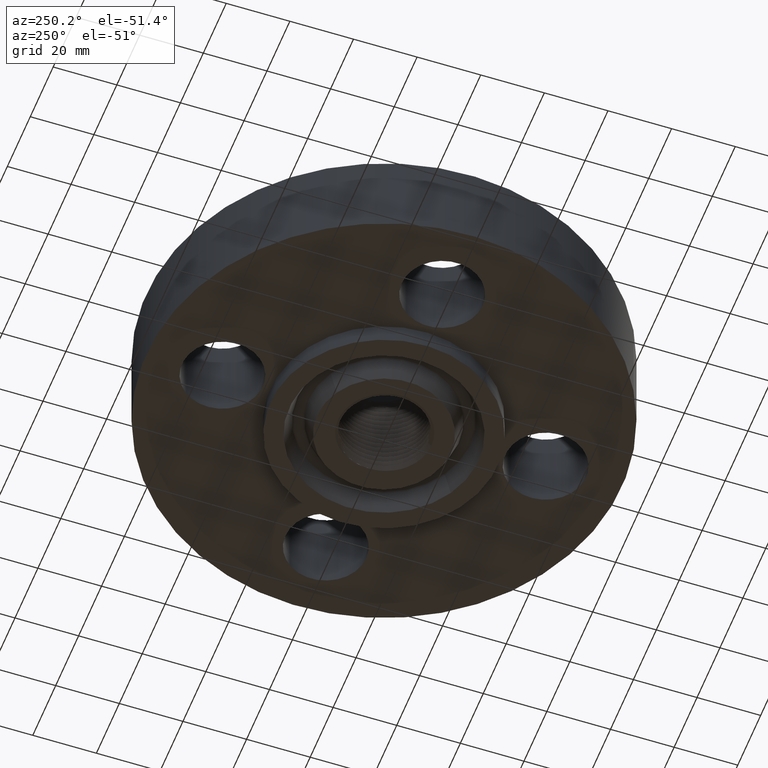
[diagram: clean part render]
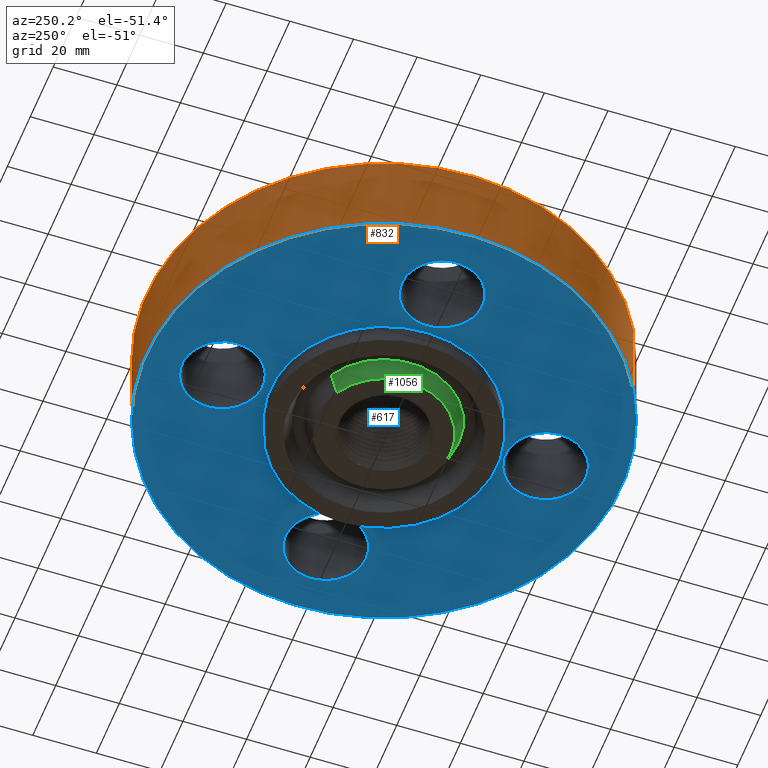
[diagram: same view with three faces highlighted in distinct colors, each labeled with its STEP entity id]
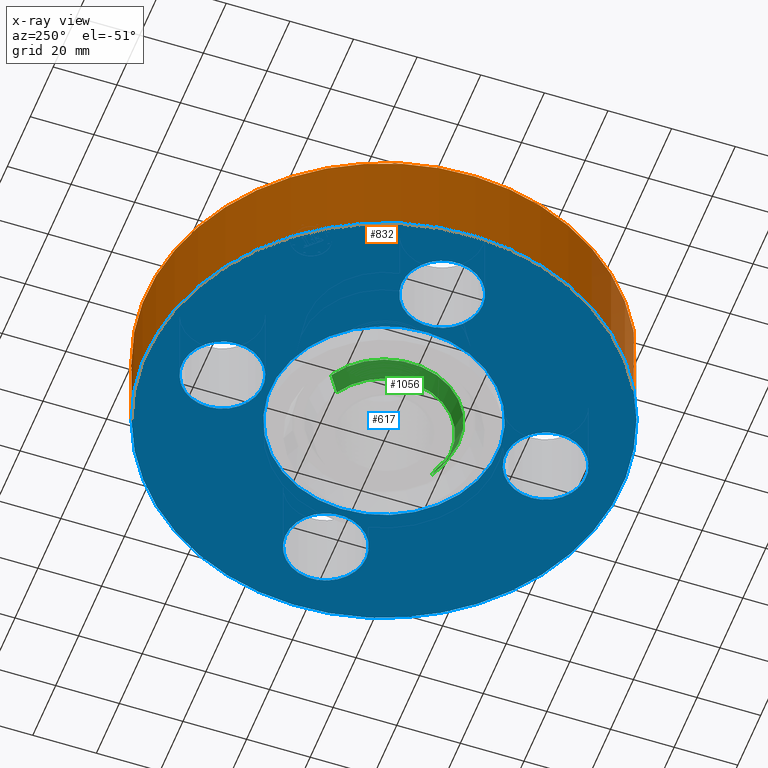
[diagram: x-ray of the same camera — body ghosted, the three highlighted faces saturated]
A machine part, auxiliary view with three faces highlighted in distinct colors.
The next image is the same camera in x-ray (body ghosted, the three faces saturated) — at least one of them is partly hidden behind the body in this view.
Their STEP definitions:

[orange] entity #832 — the highlighted cylindrical surface (partial cylindrical patch) has radius 74.676 mm, axis along (0, 0, -1).
#553=AXIS2_PLACEMENT_3D('Circle Axis2P3D',#551,#552,$) ;
#793=AXIS2_PLACEMENT_3D('Cylinder Axis2P3D',#790,#791,#792) ;
#823=AXIS2_PLACEMENT_3D('Circle Axis2P3D',#821,#822,$) ;
#551=CARTESIAN_POINT('Axis2P3D Location',(0.,0.,0.)) ;
#555=CARTESIAN_POINT('Vertex',(-1.4095110835,-2.58009273197,2.79741234551E-016)) ;
#557=CARTESIAN_POINT('Vertex',(1.4095110835,2.58009273197,2.79741234551E-016)) ;
#790=CARTESIAN_POINT('Axis2P3D Location',(0.,0.,0.685000000003)) ;
#795=CARTESIAN_POINT('Line Origine',(1.4095110835,2.58009273197,0.560000000002)) ;
#799=CARTESIAN_POINT('Vertex',(1.4095110835,2.58009273197,1.12)) ;
#806=CARTESIAN_POINT('Vertex',(-1.4095110835,-2.58009273197,1.12)) ;
#809=CARTESIAN_POINT('Line Origine',(-1.4095110835,-2.58009273197,0.560000000002)) ;
#821=CARTESIAN_POINT('Axis2P3D Location',(0.,0.,1.12)) ;
#552=DIRECTION('Axis2P3D Direction',(0.,0.,-0.0393700787402)) ;
#791=DIRECTION('Axis2P3D Direction',(0.,0.,-0.0393700787402)) ;
#792=DIRECTION('Axis2P3D XDirection',(-0.0188750212049,-0.0345504945626,0.)) ;
#796=DIRECTION('Vector Direction',(0.,0.,-0.0393700787402)) ;
#810=DIRECTION('Vector Direction',(0.,0.,-0.0393700787402)) ;
#822=DIRECTION('Axis2P3D Direction',(0.,0.,-0.0393700787402)) ;
#797=VECTOR('Line Direction',#796,0.0393700787402) ;
#811=VECTOR('Line Direction',#810,0.0393700787402) ;
#827=ORIENTED_EDGE('',*,*,#559,.F.) ;
#828=ORIENTED_EDGE('',*,*,#813,.T.) ;
#829=ORIENTED_EDGE('',*,*,#825,.T.) ;
#830=ORIENTED_EDGE('',*,*,#801,.F.) ;
#832=ADVANCED_FACE('PartBody',(#831),#794,.T.) ;
#554=CIRCLE('generated circle',#553,2.94000000001) ;
#824=CIRCLE('generated circle',#823,2.94000000001) ;
#794=CYLINDRICAL_SURFACE('generated cylinder',#793,2.94000000001) ;
#559=EDGE_CURVE('',#556,#558,#554,.T.) ;
#801=EDGE_CURVE('',#558,#800,#798,.F.) ;
#813=EDGE_CURVE('',#556,#807,#812,.F.) ;
#825=EDGE_CURVE('',#807,#800,#824,.T.) ;
#826=EDGE_LOOP('',(#827,#828,#829,#830)) ;
#831=FACE_OUTER_BOUND('',#826,.T.) ;
#798=LINE('Line',#795,#797) ;
#812=LINE('Line',#809,#811) ;
#556=VERTEX_POINT('',#555) ;
#558=VERTEX_POINT('',#557) ;
#800=VERTEX_POINT('',#799) ;
#807=VERTEX_POINT('',#806) ;

[blue] entity #617 — the highlighted planar face has unit normal (0, 0, -1).
#391=AXIS2_PLACEMENT_3D('Circle Axis2P3D',#389,#390,$) ;
#417=AXIS2_PLACEMENT_3D('Circle Axis2P3D',#415,#416,$) ;
#448=AXIS2_PLACEMENT_3D('Circle Axis2P3D',#446,#447,$) ;
#474=AXIS2_PLACEMENT_3D('Circle Axis2P3D',#472,#473,$) ;
#505=AXIS2_PLACEMENT_3D('Circle Axis2P3D',#503,#504,$) ;
#531=AXIS2_PLACEMENT_3D('Circle Axis2P3D',#529,#530,$) ;
#549=AXIS2_PLACEMENT_3D('Plane Axis2P3D',#546,#547,#548) ;
#553=AXIS2_PLACEMENT_3D('Circle Axis2P3D',#551,#552,$) ;
#562=AXIS2_PLACEMENT_3D('Circle Axis2P3D',#560,#561,$) ;
#571=AXIS2_PLACEMENT_3D('Circle Axis2P3D',#569,#570,$) ;
#580=AXIS2_PLACEMENT_3D('Circle Axis2P3D',#578,#579,$) ;
#589=AXIS2_PLACEMENT_3D('Circle Axis2P3D',#587,#588,$) ;
#598=AXIS2_PLACEMENT_3D('Circle Axis2P3D',#596,#597,$) ;
#384=CARTESIAN_POINT('Vertex',(1.7602872307,-0.438791280947,0.)) ;
#389=CARTESIAN_POINT('Axis2P3D Location',(2.00000000001,1.22464679915E-016,0.)) ;
#393=CARTESIAN_POINT('Vertex',(2.23971276931,0.438791280947,0.)) ;
#415=CARTESIAN_POINT('Axis2P3D Location',(2.00000000001,1.22464679915E-016,0.)) ;
#441=CARTESIAN_POINT('Vertex',(-0.438791280947,-1.7602872307,0.)) ;
#446=CARTESIAN_POINT('Axis2P3D Location',(2.4492935983E-016,-2.00000000001,0.)) ;
#450=CARTESIAN_POINT('Vertex',(0.438791280947,-2.23971276931,0.)) ;
#472=CARTESIAN_POINT('Axis2P3D Location',(2.4492935983E-016,-2.00000000001,0.)) ;
#498=CARTESIAN_POINT('Vertex',(-1.7602872307,0.438791280947,0.)) ;
#503=CARTESIAN_POINT('Axis2P3D Location',(-2.00000000001,-3.67394039746E-016,0.)) ;
#507=CARTESIAN_POINT('Vertex',(-2.23971276931,-0.438791280947,0.)) ;
#529=CARTESIAN_POINT('Axis2P3D Location',(-2.00000000001,-3.67394039746E-016,0.)) ;
#546=CARTESIAN_POINT('Axis2P3D Location',(0.,1.40650000001,0.)) ;
#551=CARTESIAN_POINT('Axis2P3D Location',(0.,0.,0.)) ;
#555=CARTESIAN_POINT('Vertex',(-1.4095110835,-2.58009273197,2.79741234551E-016)) ;
#557=CARTESIAN_POINT('Vertex',(1.4095110835,2.58009273197,2.79741234551E-016)) ;
#560=CARTESIAN_POINT('Axis2P3D Location',(0.,0.,0.)) ;
#569=CARTESIAN_POINT('Axis2P3D Location',(0.,2.00000000001,0.)) ;
#573=CARTESIAN_POINT('Vertex',(0.438791280947,1.7602872307,0.)) ;
#575=CARTESIAN_POINT('Vertex',(-0.438791280947,2.23971276931,0.)) ;
#578=CARTESIAN_POINT('Axis2P3D Location',(5.24514814784E-017,2.00000000001,0.)) ;
#587=CARTESIAN_POINT('Axis2P3D Location',(0.,0.,0.)) ;
#591=CARTESIAN_POINT('Vertex',(0.67431202005,1.2343198733,0.)) ;
#593=CARTESIAN_POINT('Vertex',(-0.67431202005,-1.2343198733,0.)) ;
#596=CARTESIAN_POINT('Axis2P3D Location',(0.,0.,0.)) ;
#390=DIRECTION('Axis2P3D Direction',(0.,-0.,-0.0393700787402)) ;
#416=DIRECTION('Axis2P3D Direction',(0.,-0.,-0.0393700787402)) ;
#447=DIRECTION('Axis2P3D Direction',(-0.,0.,-0.0393700787402)) ;
#473=DIRECTION('Axis2P3D Direction',(-0.,0.,-0.0393700787402)) ;
#504=DIRECTION('Axis2P3D Direction',(0.,0.,-0.0393700787402)) ;
#530=DIRECTION('Axis2P3D Direction',(0.,0.,-0.0393700787402)) ;
#547=DIRECTION('Axis2P3D Direction',(0.,0.,-0.0393700787402)) ;
#548=DIRECTION('Axis2P3D XDirection',(0.0393700787402,0.,0.)) ;
#552=DIRECTION('Axis2P3D Direction',(0.,0.,-0.0393700787402)) ;
#561=DIRECTION('Axis2P3D Direction',(0.,0.,-0.0393700787402)) ;
#570=DIRECTION('Axis2P3D Direction',(0.,0.,-0.0393700787402)) ;
#579=DIRECTION('Axis2P3D Direction',(0.,0.,-0.0393700787402)) ;
#588=DIRECTION('Axis2P3D Direction',(0.,0.,-0.0393700787402)) ;
#597=DIRECTION('Axis2P3D Direction',(0.,0.,-0.0393700787402)) ;
#566=ORIENTED_EDGE('',*,*,#559,.T.) ;
#567=ORIENTED_EDGE('',*,*,#564,.T.) ;
#584=ORIENTED_EDGE('',*,*,#577,.F.) ;
#585=ORIENTED_EDGE('',*,*,#582,.F.) ;
#602=ORIENTED_EDGE('',*,*,#595,.F.) ;
#603=ORIENTED_EDGE('',*,*,#600,.F.) ;
#606=ORIENTED_EDGE('',*,*,#419,.F.) ;
#607=ORIENTED_EDGE('',*,*,#395,.F.) ;
#610=ORIENTED_EDGE('',*,*,#476,.F.) ;
#611=ORIENTED_EDGE('',*,*,#452,.F.) ;
#614=ORIENTED_EDGE('',*,*,#533,.F.) ;
#615=ORIENTED_EDGE('',*,*,#509,.F.) ;
#586=FACE_BOUND('',#583,.T.) ;
#604=FACE_BOUND('',#601,.T.) ;
#608=FACE_BOUND('',#605,.T.) ;
#612=FACE_BOUND('',#609,.T.) ;
#616=FACE_BOUND('',#613,.T.) ;
#617=ADVANCED_FACE('PartBody',(#568,#586,#604,#608,#612,#616),#550,.T.) ;
#392=CIRCLE('generated circle',#391,0.500000000002) ;
#418=CIRCLE('generated circle',#417,0.500000000002) ;
#449=CIRCLE('generated circle',#448,0.500000000002) ;
#475=CIRCLE('generated circle',#474,0.500000000002) ;
#506=CIRCLE('generated circle',#505,0.500000000002) ;
#532=CIRCLE('generated circle',#531,0.500000000002) ;
#554=CIRCLE('generated circle',#553,2.94000000001) ;
#563=CIRCLE('generated circle',#562,2.94000000001) ;
#572=CIRCLE('generated circle',#571,0.500000000002) ;
#581=CIRCLE('generated circle',#580,0.500000000002) ;
#590=CIRCLE('generated circle',#589,1.40650000001) ;
#599=CIRCLE('generated circle',#598,1.40650000001) ;
#395=EDGE_CURVE('',#385,#394,#392,.T.) ;
#419=EDGE_CURVE('',#394,#385,#418,.T.) ;
#452=EDGE_CURVE('',#442,#451,#449,.T.) ;
#476=EDGE_CURVE('',#451,#442,#475,.T.) ;
#509=EDGE_CURVE('',#499,#508,#506,.T.) ;
#533=EDGE_CURVE('',#508,#499,#532,.T.) ;
#559=EDGE_CURVE('',#556,#558,#554,.T.) ;
#564=EDGE_CURVE('',#558,#556,#563,.T.) ;
#577=EDGE_CURVE('',#574,#576,#572,.T.) ;
#582=EDGE_CURVE('',#576,#574,#581,.T.) ;
#595=EDGE_CURVE('',#592,#594,#590,.T.) ;
#600=EDGE_CURVE('',#594,#592,#599,.T.) ;
#565=EDGE_LOOP('',(#566,#567)) ;
#583=EDGE_LOOP('',(#584,#585)) ;
#601=EDGE_LOOP('',(#602,#603)) ;
#605=EDGE_LOOP('',(#606,#607)) ;
#609=EDGE_LOOP('',(#610,#611)) ;
#613=EDGE_LOOP('',(#614,#615)) ;
#568=FACE_OUTER_BOUND('',#565,.T.) ;
#550=PLANE('',#549) ;
#385=VERTEX_POINT('',#384) ;
#394=VERTEX_POINT('',#393) ;
#442=VERTEX_POINT('',#441) ;
#451=VERTEX_POINT('',#450) ;
#499=VERTEX_POINT('',#498) ;
#508=VERTEX_POINT('',#507) ;
#556=VERTEX_POINT('',#555) ;
#558=VERTEX_POINT('',#557) ;
#574=VERTEX_POINT('',#573) ;
#576=VERTEX_POINT('',#575) ;
#592=VERTEX_POINT('',#591) ;
#594=VERTEX_POINT('',#593) ;

[green] entity #1056 — the highlighted conical surface has half-angle 23 deg.
#181=AXIS2_PLACEMENT_3D('Circle Axis2P3D',#179,#180,$) ;
#1018=AXIS2_PLACEMENT_3D('Circle Axis2P3D',#1016,#1017,$) ;
#1031=AXIS2_PLACEMENT_3D('Cone Axis2P3D',#1028,#1029,#1030) ;
#174=CARTESIAN_POINT('Vertex',(-0.396964345966,0.726638361248,-0.250000000001)) ;
#176=CARTESIAN_POINT('Vertex',(0.396964345966,-0.726638361248,-0.250000000001)) ;
#179=CARTESIAN_POINT('Axis2P3D Location',(3.49676543189E-016,-6.99353086378E-017,-0.250000000001)) ;
#994=CARTESIAN_POINT('Vertex',(0.443996713314,-0.812730532203,-0.0188873350169)) ;
#1001=CARTESIAN_POINT('Vertex',(-0.443996713314,0.812730532203,-0.0188873350169)) ;
#1016=CARTESIAN_POINT('Axis2P3D Location',(0.,0.,-0.0188873350169)) ;
#1028=CARTESIAN_POINT('Axis2P3D Location',(0.,0.,-0.310000000001)) ;
#1033=CARTESIAN_POINT('Line Origine',(-0.42048052964,0.769684446725,-0.134443667509)) ;
#1038=CARTESIAN_POINT('Line Origine',(0.42048052964,-0.769684446725,-0.134443667509)) ;
#180=DIRECTION('Axis2P3D Direction',(0.,0.,-0.0393700787402)) ;
#1017=DIRECTION('Axis2P3D Direction',(0.,0.,0.0393700787402)) ;
#1029=DIRECTION('Axis2P3D Direction',(0.,0.,0.0393700787402)) ;
#1030=DIRECTION('Axis2P3D XDirection',(-0.0188750212049,0.0345504945626,0.)) ;
#1034=DIRECTION('Vector Direction',(-0.00737505833565,0.0134999537303,0.0362403485611)) ;
#1039=DIRECTION('Vector Direction',(0.00737505833565,-0.0134999537303,0.0362403485611)) ;
#1035=VECTOR('Line Direction',#1034,0.0393700787402) ;
#1040=VECTOR('Line Direction',#1039,0.0393700787402) ;
#1051=ORIENTED_EDGE('',*,*,#1042,.F.) ;
#1052=ORIENTED_EDGE('',*,*,#1020,.F.) ;
#1053=ORIENTED_EDGE('',*,*,#1037,.T.) ;
#1054=ORIENTED_EDGE('',*,*,#183,.F.) ;
#1056=ADVANCED_FACE('PartBody',(#1055),#1032,.T.) ;
#182=CIRCLE('generated circle',#181,0.828000000003) ;
#1019=CIRCLE('generated circle',#1018,0.926101505996) ;
#1032=CONICAL_SURFACE('Cone',#1031,0.802531511031,0.401425727959) ;
#183=EDGE_CURVE('',#177,#175,#182,.T.) ;
#1020=EDGE_CURVE('',#1002,#995,#1019,.T.) ;
#1037=EDGE_CURVE('',#1002,#175,#1036,.F.) ;
#1042=EDGE_CURVE('',#995,#177,#1041,.F.) ;
#1050=EDGE_LOOP('',(#1051,#1052,#1053,#1054)) ;
#1055=FACE_OUTER_BOUND('',#1050,.T.) ;
#1036=LINE('Line',#1033,#1035) ;
#1041=LINE('Line',#1038,#1040) ;
#175=VERTEX_POINT('',#174) ;
#177=VERTEX_POINT('',#176) ;
#995=VERTEX_POINT('',#994) ;
#1002=VERTEX_POINT('',#1001) ;